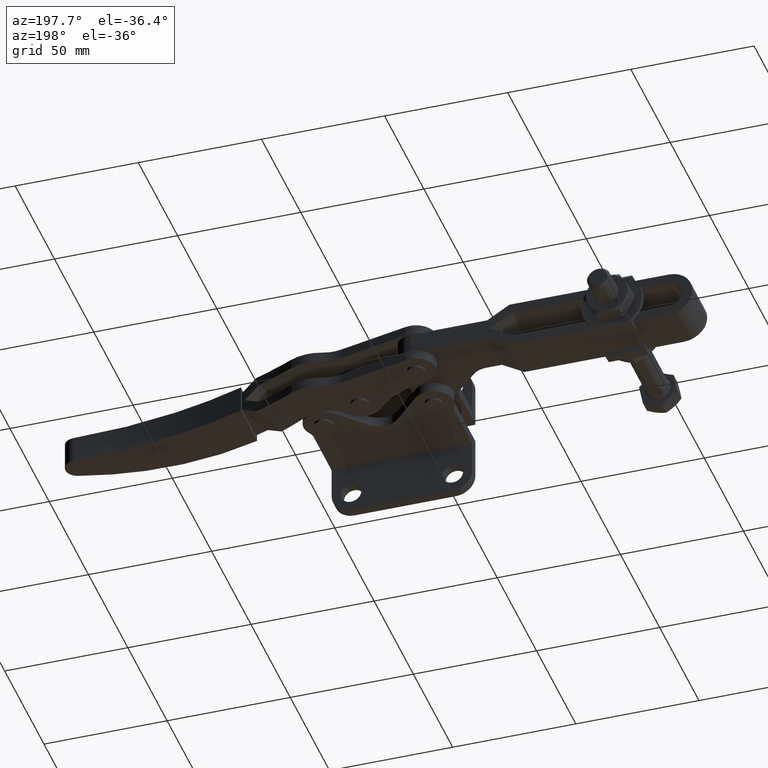
[diagram: clean part render]
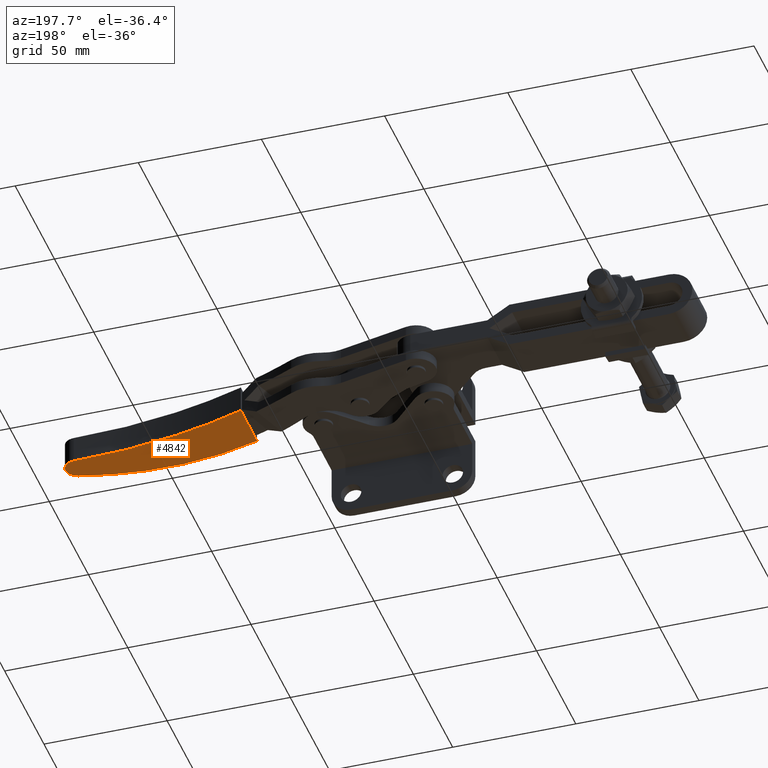
[diagram: same view with one face highlighted and labeled with its STEP entity id]
A machine part, auxiliary view. The second image highlights one B-rep face of the part: STEP entity #4842.
In plain terms, the highlighted planar face has unit normal (0, 0, -1).
Its self-contained STEP definition (entity closure, byte-faithful):
#298 = EDGE_LOOP ( 'NONE', ( #10229, #3800, #10118, #7869, #4649 ) ) ;
#1195 = CARTESIAN_POINT ( 'NONE',  ( 22.62149597772715400, 47.11996727706226600, -9.500000000000245100 ) ) ;
#1378 = EDGE_CURVE ( 'NONE', #6468, #6845, #2137, .T. ) ;
#2044 = DIRECTION ( 'NONE',  ( 0.002418649202039811200, -0.9999970750637411400, 2.093723715514421600E-017 ) ) ;
#2137 = B_SPLINE_CURVE_WITH_KNOTS ( 'NONE', 5,
 ( #8322, #8091, #10895, #2461, #8400, #3324 ),
 .UNSPECIFIED., .F., .F.,
 ( 6, 6 ),
 ( 1.425059404098854000E-007, 0.07404232257266157900 ),
 .UNSPECIFIED. ) ;
#2461 = CARTESIAN_POINT ( 'NONE',  ( 66.37213572788265000, 20.84278871716341200, -9.499999999999428000 ) ) ;
#2764 = EDGE_CURVE ( 'NONE', #6586, #6468, #5582, .T. ) ;
#2921 = EDGE_CURVE ( 'NONE', #6656, #7802, #4768, .T. ) ;
#2964 = CARTESIAN_POINT ( 'NONE',  ( 99.15824971532860800, 32.01654820971621300, -9.499999999998804500 ) ) ;
#3045 = CARTESIAN_POINT ( 'NONE',  ( 79.37803966652069200, 36.80215480941414800, -9.499999999999172200 ) ) ;
#3118 = CARTESIAN_POINT ( 'NONE',  ( 94.15826434000990700, 32.00445496370601000, -9.499999999998898700 ) ) ;
#3136 = B_SPLINE_CURVE_WITH_KNOTS ( 'NONE', 5,
 ( #8117, #3045, #3887, #9805, #4733, #10667 ),
 .UNSPECIFIED., .F., .F.,
 ( 6, 6 ),
 ( 1.110764993427085300E-016, 0.07277428358943997800 ),
 .UNSPECIFIED. ) ;
#3324 = CARTESIAN_POINT ( 'NONE',  ( 95.60933101720192400, 27.21920309327097300, -9.499999999998870200 ) ) ;
#3780 = CARTESIAN_POINT ( 'NONE',  ( 22.62149597772712500, 47.11996727706226600, -9.500000000000245100 ) ) ;
#3800 = ORIENTED_EDGE ( 'NONE', *, *, #4399, .F. ) ;
#3887 = CARTESIAN_POINT ( 'NONE',  ( 64.88127984611719500, 37.90677620651587200, -9.499999999999449300 ) ) ;
#3954 = DIRECTION ( 'NONE',  ( 0.9999970750637411400, 0.002418649202040601800, 1.873501354054952000E-014 ) ) ;
#4149 = CARTESIAN_POINT ( 'NONE',  ( 95.60933101720192400, 27.21920309327097300, -9.499999999998870200 ) ) ;
#4332 = CARTESIAN_POINT ( 'NONE',  ( 22.66801694025606700, 27.88574909492273700, -9.499999905955819600 ) ) ;
#4399 = EDGE_CURVE ( 'NONE', #7802, #6586, #3136, .T. ) ;
#4504 = CARTESIAN_POINT ( 'NONE',  ( 22.61765067860474300, 48.70981663193917700, -9.499999977619630400 ) ) ;
#4636 = CARTESIAN_POINT ( 'NONE',  ( 94.15826434000990700, 32.00445496370601000, -9.499999999998898700 ) ) ;
#4649 = ORIENTED_EDGE ( 'NONE', *, *, #1378, .F. ) ;
#4699 = FACE_OUTER_BOUND ( 'NONE', #298, .T. ) ;
#4733 = CARTESIAN_POINT ( 'NONE',  ( 36.49559054940129200, 43.82705921383596600, -9.499999999999984000 ) ) ;
#4768 = CIRCLE ( 'NONE', #8777, 4.999999999999999100 ) ;
#4842 = ADVANCED_FACE ( 'NONE', ( #4699 ), #8773, .T. ) ;
#5030 = AXIS2_PLACEMENT_3D ( 'NONE', #4636, #10573, #5520 ) ;
#5036 = CARTESIAN_POINT ( 'NONE',  ( 94.08862832718712400, 37.00352430664058500, -9.499999999998898700 ) ) ;
#5504 = EDGE_CURVE ( 'NONE', #6845, #6656, #7219, .T. ) ;
#5520 = DIRECTION ( 'NONE',  ( 0.9999970750637411400, 0.002418649202040601800, 1.873501354054952000E-014 ) ) ;
#5582 = LINE ( 'NONE', #3780, #7581 ) ;
#6468 = VERTEX_POINT ( 'NONE', #4332 ) ;
#6586 = VERTEX_POINT ( 'NONE', #4504 ) ;
#6656 = VERTEX_POINT ( 'NONE', #2964 ) ;
#6845 = VERTEX_POINT ( 'NONE', #4149 ) ;
#7132 = DIRECTION ( 'NONE',  ( 1.880792234194940100E-014, 2.455260102403142500E-017, -1.000000000000000000 ) ) ;
#7162 = DIRECTION ( 'NONE',  ( 0.002418649202039811200, -0.9999970750637411400, 2.093723715514421300E-017 ) ) ;
#7219 = CIRCLE ( 'NONE', #5030, 4.999999999999999100 ) ;
#7581 = VECTOR ( 'NONE', #7162, 1000.000000000000000 ) ;
#7802 = VERTEX_POINT ( 'NONE', #5036 ) ;
#7869 = ORIENTED_EDGE ( 'NONE', *, *, #5504, .F. ) ;
#8009 = AXIS2_PLACEMENT_3D ( 'NONE', #1195, #7132, #2044 ) ;
#8091 = CARTESIAN_POINT ( 'NONE',  ( 37.21457113713999100, 23.18848390368755500, -9.499999999999980500 ) ) ;
#8117 = CARTESIAN_POINT ( 'NONE',  ( 94.08862832718712400, 37.00352430664058500, -9.499999999998898700 ) ) ;
#8322 = CARTESIAN_POINT ( 'NONE',  ( 22.66801694025606700, 27.88574909492273700, -9.499999905955819600 ) ) ;
#8400 = CARTESIAN_POINT ( 'NONE',  ( 80.97943358985891400, 22.78836167925225800, -9.499999999999156200 ) ) ;
#8773 = PLANE ( 'NONE',  #8009 ) ;
#8777 = AXIS2_PLACEMENT_3D ( 'NONE', #3118, #9016, #3954 ) ;
#9016 = DIRECTION ( 'NONE',  ( -1.880792234194940400E-014, -2.455260102404608100E-017, 1.000000000000000000 ) ) ;
#9805 = CARTESIAN_POINT ( 'NONE',  ( 50.58685581025629600, 40.24673611589901900, -9.499999999999721100 ) ) ;
#10118 = ORIENTED_EDGE ( 'NONE', *, *, #2921, .F. ) ;
#10229 = ORIENTED_EDGE ( 'NONE', *, *, #2764, .F. ) ;
#10573 = DIRECTION ( 'NONE',  ( -1.880792234194940400E-014, -2.455260102404608100E-017, 1.000000000000000000 ) ) ;
#10667 = CARTESIAN_POINT ( 'NONE',  ( 22.61765067860474300, 48.70981663193917700, -9.499999977619630400 ) ) ;
#10895 = CARTESIAN_POINT ( 'NONE',  ( 51.78384828911237000, 20.97616776443369300, -9.499999999999706900 ) ) ;